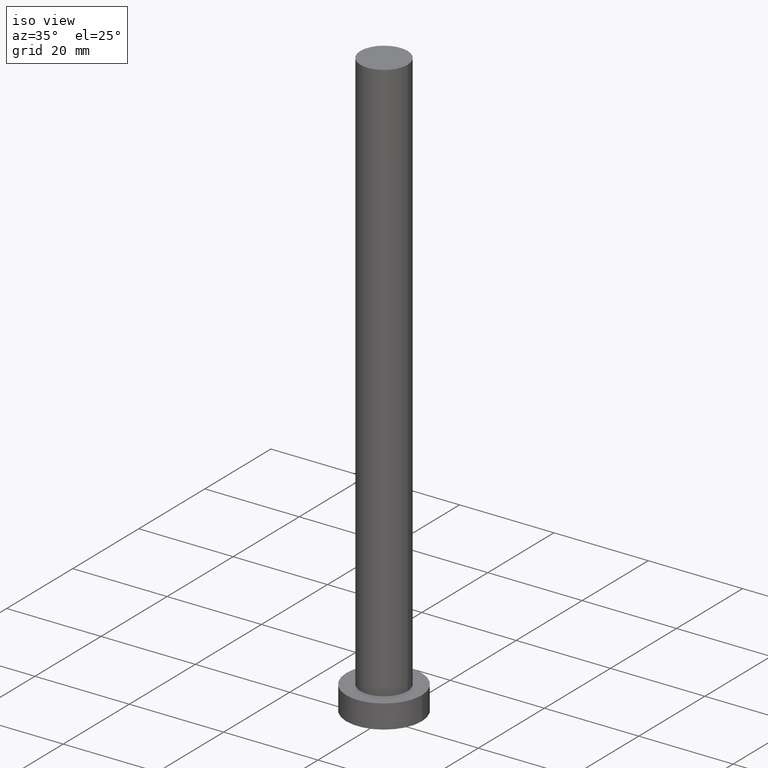
[diagram: clean part render]
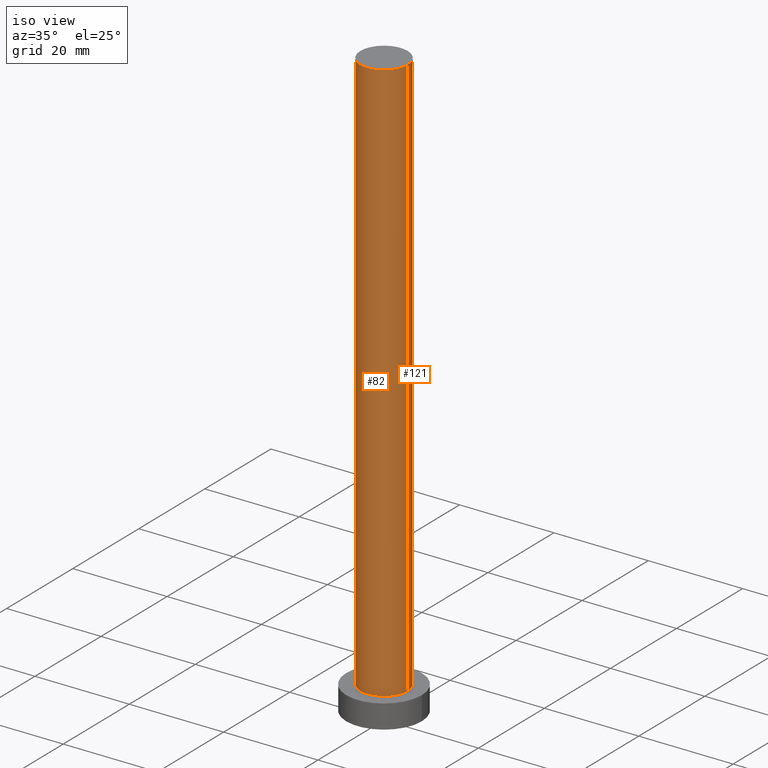
[diagram: same view with one multi-face feature highlighted, each face labeled with its STEP entity id]
A machine part, iso view. The highlighted faces form ONE feature: a constant-radius fillet chain: 2 tangent blend faces with common blend radius 5 mm. The faces share edges in the B-rep.
Their STEP definitions:
[1] entity #121 (Cylinder):
#15 = EDGE_LOOP ( 'NONE', ( #177, #162, #56, #96 ) ) ;
#16 = CARTESIAN_POINT ( 'NONE',  ( -5.000000000000000888, 0.000000000000000000, 125.0000000000000000 ) ) ;
#19 = CYLINDRICAL_SURFACE ( 'NONE', #226, 5.000000000000000888 ) ;
#30 = EDGE_CURVE ( 'NONE', #86, #132, #104, .T. ) ;
#32 = VECTOR ( 'NONE', #101, 1000.000000000000000 ) ;
#47 = DIRECTION ( 'NONE',  ( -1.000000000000000000, 0.000000000000000000, 0.000000000000000000 ) ) ;
#53 = DIRECTION ( 'NONE',  ( 0.000000000000000000, 0.000000000000000000, 1.000000000000000000 ) ) ;
#56 = ORIENTED_EDGE ( 'NONE', *, *, #30, .T. ) ;
#66 = DIRECTION ( 'NONE',  ( 1.000000000000000000, 0.000000000000000000, 0.000000000000000000 ) ) ;
#70 = DIRECTION ( 'NONE',  ( -0.000000000000000000, -0.000000000000000000, -1.000000000000000000 ) ) ;
#85 = DIRECTION ( 'NONE',  ( -0.000000000000000000, -0.000000000000000000, -1.000000000000000000 ) ) ;
#86 = VERTEX_POINT ( 'NONE', #186 ) ;
#88 = DIRECTION ( 'NONE',  ( 1.000000000000000000, 0.000000000000000000, 0.000000000000000000 ) ) ;
#96 = ORIENTED_EDGE ( 'NONE', *, *, #233, .F. ) ;
#101 = DIRECTION ( 'NONE',  ( -0.000000000000000000, -0.000000000000000000, -1.000000000000000000 ) ) ;
#104 = CIRCLE ( 'NONE', #246, 5.000000000000000888 ) ;
#108 = CARTESIAN_POINT ( 'NONE',  ( 0.000000000000000000, 0.000000000000000000, 5.000000000000000000 ) ) ;
#110 = CARTESIAN_POINT ( 'NONE',  ( -5.000000000000000888, 0.000000000000000000, 125.0000000000000000 ) ) ;
#119 = CIRCLE ( 'NONE', #152, 5.000000000000000888 ) ;
#121 = ADVANCED_FACE ( 'NONE', ( #208 ), #19, .T. ) ;
#132 = VERTEX_POINT ( 'NONE', #223 ) ;
#139 = LINE ( 'NONE', #227, #32 ) ;
#140 = CARTESIAN_POINT ( 'NONE',  ( 0.000000000000000000, 0.000000000000000000, 125.0000000000000000 ) ) ;
#146 = DIRECTION ( 'NONE',  ( 0.000000000000000000, 0.000000000000000000, 1.000000000000000000 ) ) ;
#150 = VERTEX_POINT ( 'NONE', #179 ) ;
#152 = AXIS2_PLACEMENT_3D ( 'NONE', #167, #53, #66 ) ;
#160 = VERTEX_POINT ( 'NONE', #110 ) ;
#162 = ORIENTED_EDGE ( 'NONE', *, *, #199, .T. ) ;
#167 = CARTESIAN_POINT ( 'NONE',  ( 0.000000000000000000, 0.000000000000000000, 125.0000000000000000 ) ) ;
#173 = EDGE_CURVE ( 'NONE', #150, #160, #119, .T. ) ;
#177 = ORIENTED_EDGE ( 'NONE', *, *, #173, .F. ) ;
#179 = CARTESIAN_POINT ( 'NONE',  ( 5.000000000000000888, 6.123233995736767268E-16, 125.0000000000000000 ) ) ;
#186 = CARTESIAN_POINT ( 'NONE',  ( 5.000000000000000888, 6.123233995736767268E-16, 5.000000000000000000 ) ) ;
#199 = EDGE_CURVE ( 'NONE', #150, #86, #139, .T. ) ;
#208 = FACE_OUTER_BOUND ( 'NONE', #15, .T. ) ;
#217 = VECTOR ( 'NONE', #70, 1000.000000000000000 ) ;
#223 = CARTESIAN_POINT ( 'NONE',  ( -5.000000000000000888, 0.000000000000000000, 5.000000000000000000 ) ) ;
#226 = AXIS2_PLACEMENT_3D ( 'NONE', #140, #85, #47 ) ;
#227 = CARTESIAN_POINT ( 'NONE',  ( 5.000000000000000888, 6.123233995736767268E-16, 125.0000000000000000 ) ) ;
#233 = EDGE_CURVE ( 'NONE', #160, #132, #255, .T. ) ;
#246 = AXIS2_PLACEMENT_3D ( 'NONE', #108, #146, #88 ) ;
#255 = LINE ( 'NONE', #16, #217 ) ;
[2] entity #82 (Cylinder):
#1 = DIRECTION ( 'NONE',  ( 1.000000000000000000, 0.000000000000000000, 0.000000000000000000 ) ) ;
#16 = CARTESIAN_POINT ( 'NONE',  ( -5.000000000000000888, 0.000000000000000000, 125.0000000000000000 ) ) ;
#22 = ORIENTED_EDGE ( 'NONE', *, *, #126, .T. ) ;
#31 = CIRCLE ( 'NONE', #229, 5.000000000000000888 ) ;
#32 = VECTOR ( 'NONE', #101, 1000.000000000000000 ) ;
#46 = DIRECTION ( 'NONE',  ( -0.000000000000000000, -0.000000000000000000, -1.000000000000000000 ) ) ;
#57 = CARTESIAN_POINT ( 'NONE',  ( 0.000000000000000000, 0.000000000000000000, 5.000000000000000000 ) ) ;
#59 = ORIENTED_EDGE ( 'NONE', *, *, #233, .T. ) ;
#65 = DIRECTION ( 'NONE',  ( 0.000000000000000000, 0.000000000000000000, 1.000000000000000000 ) ) ;
#70 = DIRECTION ( 'NONE',  ( -0.000000000000000000, -0.000000000000000000, -1.000000000000000000 ) ) ;
#82 = ADVANCED_FACE ( 'NONE', ( #254 ), #144, .T. ) ;
#86 = VERTEX_POINT ( 'NONE', #186 ) ;
#87 = DIRECTION ( 'NONE',  ( 1.000000000000000000, 0.000000000000000000, 0.000000000000000000 ) ) ;
#89 = EDGE_CURVE ( 'NONE', #160, #150, #31, .T. ) ;
#90 = CARTESIAN_POINT ( 'NONE',  ( 0.000000000000000000, 0.000000000000000000, 125.0000000000000000 ) ) ;
#101 = DIRECTION ( 'NONE',  ( -0.000000000000000000, -0.000000000000000000, -1.000000000000000000 ) ) ;
#105 = CARTESIAN_POINT ( 'NONE',  ( 0.000000000000000000, 0.000000000000000000, 125.0000000000000000 ) ) ;
#110 = CARTESIAN_POINT ( 'NONE',  ( -5.000000000000000888, 0.000000000000000000, 125.0000000000000000 ) ) ;
#123 = DIRECTION ( 'NONE',  ( 0.000000000000000000, 0.000000000000000000, 1.000000000000000000 ) ) ;
#126 = EDGE_CURVE ( 'NONE', #132, #86, #175, .T. ) ;
#132 = VERTEX_POINT ( 'NONE', #223 ) ;
#139 = LINE ( 'NONE', #227, #32 ) ;
#144 = CYLINDRICAL_SURFACE ( 'NONE', #168, 5.000000000000000888 ) ;
#150 = VERTEX_POINT ( 'NONE', #179 ) ;
#160 = VERTEX_POINT ( 'NONE', #110 ) ;
#168 = AXIS2_PLACEMENT_3D ( 'NONE', #105, #46, #253 ) ;
#172 = ORIENTED_EDGE ( 'NONE', *, *, #89, .F. ) ;
#175 = CIRCLE ( 'NONE', #216, 5.000000000000000888 ) ;
#179 = CARTESIAN_POINT ( 'NONE',  ( 5.000000000000000888, 6.123233995736767268E-16, 125.0000000000000000 ) ) ;
#186 = CARTESIAN_POINT ( 'NONE',  ( 5.000000000000000888, 6.123233995736767268E-16, 5.000000000000000000 ) ) ;
#193 = EDGE_LOOP ( 'NONE', ( #245, #172, #59, #22 ) ) ;
#199 = EDGE_CURVE ( 'NONE', #150, #86, #139, .T. ) ;
#216 = AXIS2_PLACEMENT_3D ( 'NONE', #57, #123, #87 ) ;
#217 = VECTOR ( 'NONE', #70, 1000.000000000000000 ) ;
#223 = CARTESIAN_POINT ( 'NONE',  ( -5.000000000000000888, 0.000000000000000000, 5.000000000000000000 ) ) ;
#227 = CARTESIAN_POINT ( 'NONE',  ( 5.000000000000000888, 6.123233995736767268E-16, 125.0000000000000000 ) ) ;
#229 = AXIS2_PLACEMENT_3D ( 'NONE', #90, #65, #1 ) ;
#233 = EDGE_CURVE ( 'NONE', #160, #132, #255, .T. ) ;
#245 = ORIENTED_EDGE ( 'NONE', *, *, #199, .F. ) ;
#253 = DIRECTION ( 'NONE',  ( -1.000000000000000000, 0.000000000000000000, 0.000000000000000000 ) ) ;
#254 = FACE_OUTER_BOUND ( 'NONE', #193, .T. ) ;
#255 = LINE ( 'NONE', #16, #217 ) ;